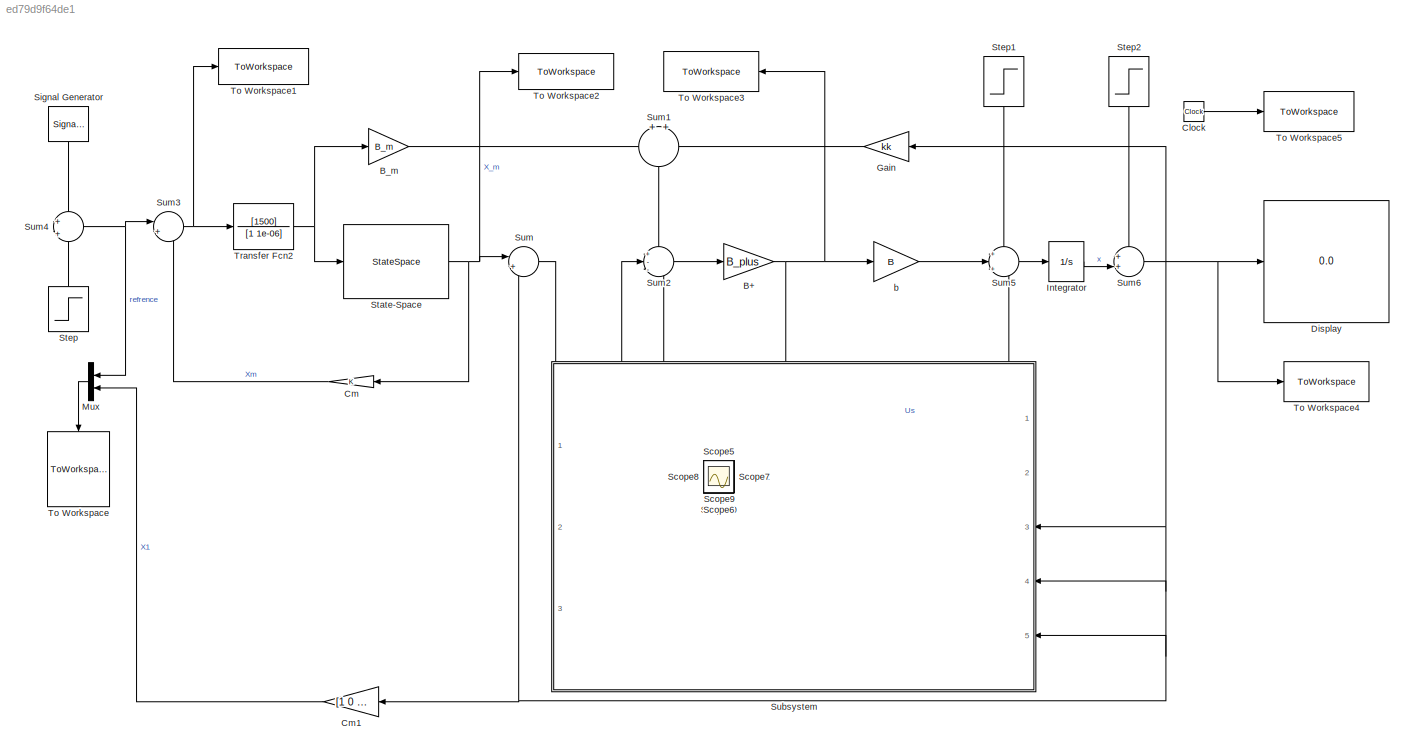
MODEL slx_ed79d9f64de1
KIND model
CONFIG AbsTol = auto
CONFIG EnableMultiTasking = off
CONFIG FixedStep = 0.001
CONFIG MaxStep = auto
CONFIG MinStep = auto
CONFIG RelTol = 1e-3
CONFIG SampleTimeConstraint = Unconstrained
CONFIG SolverName = ode15s
CONFIG StartTime = 0.0
CONFIG StopTime = 10
BLOCK [Gain] B+
  Gain = B_plus
  Multiplication = Matrix(K*u)
BLOCK [Gain] B_m
  Gain = B_m
  Multiplication = Matrix(K*u)
BLOCK [Clock] Clock
  Decimation = 1
BLOCK [Gain] Cm
BLOCK [Gain] Cm1
  Gain = [1  0  0];
BLOCK [Display] Display
  Decimation = 1
  Format = long
  Ports = [1]
BLOCK [Gain] Gain
  Gain = kk
  Multiplication = Matrix(K*u)
  NameLocation = top
BLOCK [Integrator] Integrator
  Ports = [1, 1]
BLOCK [Mux] Mux
  DisplayOption = bar
  Inputs = 2
  NameLocation = top
  Ports = [2, 1]
BLOCK [Scope] Scope
  Floating = off
  IOType = viewer
  NumInputPorts = 1
  Ports = []
  ScopeSpecificationString = Simulink.scopes.TimeScopeBlockCfg('CurrentConfiguration', extmgr.ConfigurationSet(extmgr.Configuration('Core','General UI',true),extmgr.Configuration('Core','Source UI',true),extmgr.Configuration('Sources','WiredSimulink',true,'DataLoggingVariableName','ScopeData5'),extmgr.Configuration('Visuals','Time Domain',true,'SerializedDisplays',{struct('MinYLimReal','-0.25001','MaxYLimReal','2.25','YLabelR...<+1376ch>
BLOCK [Scope] Scope1
  Floating = off
  IOType = viewer
  NumInputPorts = 1
  Ports = []
  ScopeSpecificationString = Simulink.scopes.TimeScopeBlockCfg('CurrentConfiguration', extmgr.ConfigurationSet(extmgr.Configuration('Core','General UI',true),extmgr.Configuration('Core','Source UI',true),extmgr.Configuration('Sources','WiredSimulink',true,'DataLoggingVariableName','ScopeData7'),extmgr.Configuration('Visuals','Time Domain',true,'SerializedDisplays',{struct('MinYLimReal','-7.5','MaxYLimReal','67.5','YLabelReal'...<+1405ch>
BLOCK [Scope] Scope10
  Floating = off
  IOType = viewer
  NumInputPorts = 1
  Ports = []
  ScopeSpecificationString = Simulink.scopes.TimeScopeBlockCfg('CurrentConfiguration', extmgr.ConfigurationSet(extmgr.Configuration('Core','General UI',true),extmgr.Configuration('Core','Source UI',true),extmgr.Configuration('Sources','WiredSimulink',true,'DataLoggingVariableName','ScopeData10'),extmgr.Configuration('Visuals','Time Domain',true,'SerializedDisplays',{struct('MinYLimReal','-0.75008','MaxYLimReal','6.75001','YLa...<+1364ch>
BLOCK [Scope] Scope2
  Floating = off
  IOType = viewer
  NumInputPorts = 1
  Ports = []
  ScopeSpecificationString = Simulink.scopes.TimeScopeBlockCfg('CurrentConfiguration', extmgr.ConfigurationSet(extmgr.Configuration('Core','General UI',true),extmgr.Configuration('Core','Source UI',true),extmgr.Configuration('Sources','WiredSimulink',true,'DataLoggingVariableName','ScopeData6'),extmgr.Configuration('Visuals','Time Domain',true,'SerializedDisplays',{struct('MinYLimReal','-5007447.96445','MaxYLimReal','556383.1...<+1453ch>
BLOCK [Scope] Scope3
  Floating = off
  IOType = viewer
  NumInputPorts = 1
  Ports = []
  ScopeSpecificationString = Simulink.scopes.TimeScopeBlockCfg('CurrentConfiguration', extmgr.ConfigurationSet(extmgr.Configuration('Core','General UI',true),extmgr.Configuration('Core','Source UI',true),extmgr.Configuration('Sources','WiredSimulink',true,'DataLoggingVariableName','ScopeData3'),extmgr.Configuration('Visuals','Time Domain',true,'SerializedDisplays',{struct('MinYLimReal','-5.89265','MaxYLimReal','5.62538','YLab...<+1405ch>
BLOCK [Scope] Scope4
  Floating = off
  IOType = viewer
  NumInputPorts = 1
  Ports = []
  ScopeSpecificationString = Simulink.scopes.TimeScopeBlockCfg('CurrentConfiguration', extmgr.ConfigurationSet(extmgr.Configuration('Core','General UI',true),extmgr.Configuration('Core','Source UI',true),extmgr.Configuration('Sources','WiredSimulink',true,'DataLoggingVariableName','ScopeData4'),extmgr.Configuration('Visuals','Time Domain',true,'SerializedDisplays',{struct('MinYLimReal','-0.75001','MaxYLimReal','6.75008','YLab...<+1362ch>
BLOCK [Scope] Scope5
  Floating = off
  IOType = viewer
  NumInputPorts = 1
  Ports = []
  ScopeSpecificationString = Simulink.scopes.TimeScopeBlockCfg('CurrentConfiguration', extmgr.ConfigurationSet(extmgr.Configuration('Core','General UI',true),extmgr.Configuration('Core','Source UI',true),extmgr.Configuration('Sources','WiredSimulink',true,'DataLoggingVariableName','ScopeData8'),extmgr.Configuration('Visuals','Time Domain',true,'SerializedDisplays',{struct('MinYLimReal','-220066.02076','MaxYLimReal','575970.56...<+1424ch>
BLOCK [Scope] Scope6
  Floating = off
  IOType = viewer
  NumInputPorts = 1
  Ports = []
  ScopeSpecificationString = Simulink.scopes.TimeScopeBlockCfg('CurrentConfiguration', extmgr.ConfigurationSet(extmgr.Configuration('Core','General UI',true),extmgr.Configuration('Core','Source UI',true),extmgr.Configuration('Sources','WiredSimulink',true,'DataLoggingVariableName','ScopeData1'),extmgr.Configuration('Visuals','Time Domain',true,'SerializedDisplays',{struct('MinYLimReal','-4137.35704','MaxYLimReal','10828.54975...<+1387ch>
BLOCK [Scope] Scope7
  Floating = off
  IOType = viewer
  NumInputPorts = 1
  Ports = []
  ScopeSpecificationString = Simulink.scopes.TimeScopeBlockCfg('CurrentConfiguration', extmgr.ConfigurationSet(extmgr.Configuration('Core','General UI',true,'FigureColor',[1 1 1]),extmgr.Configuration('Core','Source UI',true),extmgr.Configuration('Sources','WiredSimulink',true,'DataLoggingVariableName','ScopeData2'),extmgr.Configuration('Visuals','Time Domain',true,'SerializedDisplays',{struct('MinYLimReal','-0.85107','MaxYLi...<+1611ch>
BLOCK [Scope] Scope8
  Floating = off
  IOType = viewer
  NumInputPorts = 1
  Ports = []
  ScopeSpecificationString = Simulink.scopes.TimeScopeBlockCfg('CurrentConfiguration', extmgr.ConfigurationSet(extmgr.Configuration('Core','General UI',true),extmgr.Configuration('Core','Source UI',true),extmgr.Configuration('Sources','WiredSimulink',true),extmgr.Configuration('Visuals','Time Domain',true,'SerializedDisplays',{struct('MinYLimReal','-323.72698','MaxYLimReal','833.55268','YLabelReal','','MinYLimMag',' 0.00000',...<+1391ch>
BLOCK [Scope] Scope9
  Floating = off
  IOType = viewer
  NumInputPorts = 1
  Ports = []
  ScopeSpecificationString = Simulink.scopes.TimeScopeBlockCfg('CurrentConfiguration', extmgr.ConfigurationSet(extmgr.Configuration('Core','General UI',true),extmgr.Configuration('Core','Source UI',true),extmgr.Configuration('Sources','WiredSimulink',true,'DataLoggingVariableName','ScopeData9'),extmgr.Configuration('Visuals','Time Domain',true,'SerializedDisplays',{struct('MinYLimReal','-10.00000','MaxYLimReal','10.00000','YL...<+1365ch>
BLOCK [SignalGenerator] Signal Generator
  Amplitude = 2
  Frequency = 10
  NameLocation = left
  Ports = [0, 1]
BLOCK [StateSpace] State-Space
  A = A_m
  B = B_m
  C = C_m
  D = 0
  InitialCondition = 0
  Ports = [1, 1]
BLOCK [Step] Step
  After = 4
  NameLocation = right
  SampleTime = 0
  Time = 0
BLOCK [Step] Step1
  After = [50 50 50]';
  NameLocation = left
  SampleTime = 0
  Time = 2
BLOCK [Step] Step2
  After = 0.1
  NameLocation = left
  SampleTime = 0
  Time = 4
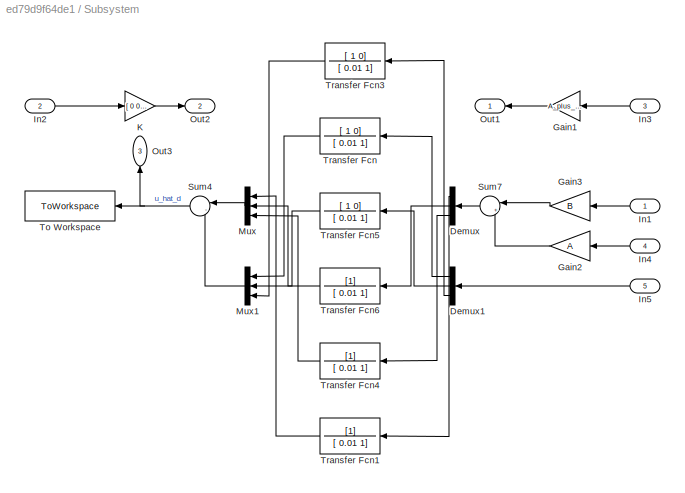
BLOCK [SubSystem] Subsystem
  NameLocation = top
  Ports = [5, 3]
  RequestExecContextInheritance = off
BLOCK [Demux] Subsystem/Demux
  NameLocation = top
  Outputs = 3
  Ports = [1, 3]
BLOCK [Demux] Subsystem/Demux1
  NameLocation = top
  Outputs = 3
  Ports = [1, 3]
BLOCK [Gain] Subsystem/Gain1
  Gain = A_plus_delA
  Multiplication = Matrix(K*u)
  NameLocation = top
BLOCK [Gain] Subsystem/Gain2
  Gain = A
  Multiplication = Matrix(K*u)
  NameLocation = top
BLOCK [Gain] Subsystem/Gain3
  Gain = B
  Multiplication = Matrix(K*u)
  NameLocation = top
BLOCK [Inport] Subsystem/In1
  NameLocation = top
BLOCK [Inport] Subsystem/In2
  Port = 2
BLOCK [Inport] Subsystem/In3
  Port = 3
BLOCK [Inport] Subsystem/In4
  Port = 4
BLOCK [Inport] Subsystem/In5
  Port = 5
BLOCK [Gain] Subsystem/K
  Gain = [ 0   0    0]
BLOCK [Mux] Subsystem/Mux
  DisplayOption = bar
  Inputs = 3
  NameLocation = top
  Ports = [3, 1]
BLOCK [Mux] Subsystem/Mux1
  DisplayOption = bar
  Inputs = 3
  NameLocation = top
  Ports = [3, 1]
BLOCK [Outport] Subsystem/Out1
  NameLocation = top
BLOCK [Outport] Subsystem/Out2
  Port = 2
BLOCK [Outport] Subsystem/Out3
  NameLocation = left
  Port = 3
BLOCK [Sum] Subsystem/Sum4
  Inputs = |-+
  NameLocation = top
  Ports = [2, 1]
BLOCK [Sum] Subsystem/Sum7
  Inputs = |++
  NameLocation = top
  Ports = [2, 1]
BLOCK [ToWorkspace] Subsystem/To Workspace
  FixptAsFi = on
  MaxDataPoints = inf
  NameLocation = top
  Ports = [1]
  SampleTime = -1
  Save2DSignal = 2-D array (concatenate along first dimension)
  VariableName = Ud_hat
BLOCK [TransferFcn] Subsystem/Transfer Fcn
  Denominator = [ 0.01    1]
  NameLocation = top
  Numerator = [  1  0]
BLOCK [TransferFcn] Subsystem/Transfer Fcn1
  Denominator = [ 0.01      1]
  NameLocation = top
BLOCK [TransferFcn] Subsystem/Transfer Fcn3
  Denominator = [ 0.01    1]
  NameLocation = top
  Numerator = [  1  0]
BLOCK [TransferFcn] Subsystem/Transfer Fcn4
  Denominator = [ 0.01      1]
  NameLocation = top
BLOCK [TransferFcn] Subsystem/Transfer Fcn5
  Denominator = [ 0.01    1]
  NameLocation = top
  Numerator = [  1  0]
BLOCK [TransferFcn] Subsystem/Transfer Fcn6
  Denominator = [ 0.01      1]
  NameLocation = top
BLOCK [Sum] Sum
  Inputs = |+-
  Ports = [2, 1]
BLOCK [Sum] Sum1
  NameLocation = right
  Ports = [2, 1]
BLOCK [Sum] Sum2
  Inputs = +--
  Ports = [3, 1]
BLOCK [Sum] Sum3
  Inputs = |+-
  Ports = [2, 1]
BLOCK [Sum] Sum4
  Inputs = +|+
  Ports = [2, 1]
BLOCK [Sum] Sum5
  Inputs = +|+|+
  Ports = [3, 1]
BLOCK [Sum] Sum6
  Inputs = ++|
  Ports = [2, 1]
BLOCK [ToWorkspace] To Workspace
  FixptAsFi = on
  MaxDataPoints = inf
  NameLocation = left
  Ports = [1]
  SampleTime = -1
  SaveFormat = Structure With Time
  VariableName = input
BLOCK [ToWorkspace] To Workspace1
  FixptAsFi = on
  MaxDataPoints = inf
  Ports = [1]
  SampleTime = -1
  SaveFormat = Structure With Time
  VariableName = error
BLOCK [ToWorkspace] To Workspace2
  FixptAsFi = on
  MaxDataPoints = inf
  Ports = [1]
  SampleTime = -1
  SaveFormat = Structure With Time
  VariableName = X_model
BLOCK [ToWorkspace] To Workspace3
  FixptAsFi = on
  MaxDataPoints = inf
  NameLocation = top
  Ports = [1]
  SampleTime = -1
  SaveFormat = Structure With Time
  VariableName = actual_control
BLOCK [ToWorkspace] To Workspace4
  FixptAsFi = on
  MaxDataPoints = inf
  Ports = [1]
  SampleTime = -1
  SaveFormat = Structure With Time
  VariableName = X_actual
BLOCK [ToWorkspace] To Workspace5
  FixptAsFi = on
  MaxDataPoints = inf
  Ports = [1]
  SampleTime = -1
  VariableName = t
BLOCK [TransferFcn] Transfer Fcn2
  Denominator = [1 1e-06]
  Numerator = [1500]
BLOCK [Gain] b
  Gain = B
  Multiplication = Matrix(K*u)
NET B+:1 -> Subsystem:1, To Workspace3:1, b:1
LINE B_m:1 -> Sum1:1
LINE Clock:1 -> To Workspace5:1
LINE Cm1:1 -> Mux:2
LINE Cm:1 -> Sum3:2
LINE Gain:1 -> Sum1:2
LINE Integrator:1 -> Sum6:2
LINE Mux:1 -> To Workspace:1
LINE Signal Generator:1 -> Sum4:1
NET State-Space:1 -> Cm:1, Sum:1, To Workspace2:1
LINE Step1:1 -> Sum5:1
LINE Step2:1 -> Sum6:1
LINE Step:1 -> Sum4:2
LINE Subsystem/Demux1:1 -> Subsystem/Transfer Fcn:1
LINE Subsystem/Demux1:2 -> Subsystem/Transfer Fcn5:1
LINE Subsystem/Demux1:3 -> Subsystem/Transfer Fcn3:1
LINE Subsystem/Demux:1 -> Subsystem/Transfer Fcn1:1
LINE Subsystem/Demux:2 -> Subsystem/Transfer Fcn6:1
LINE Subsystem/Demux:3 -> Subsystem/Transfer Fcn4:1
LINE Subsystem/Gain1:1 -> Subsystem/Out1:1
LINE Subsystem/Gain2:1 -> Subsystem/Sum7:2
LINE Subsystem/Gain3:1 -> Subsystem/Sum7:1
LINE Subsystem/In1:1 -> Subsystem/Gain3:1
LINE Subsystem/In2:1 -> Subsystem/K:1
LINE Subsystem/In3:1 -> Subsystem/Gain1:1
LINE Subsystem/In4:1 -> Subsystem/Gain2:1
LINE Subsystem/In5:1 -> Subsystem/Demux1:1
LINE Subsystem/K:1 -> Subsystem/Out2:1
LINE Subsystem/Mux1:1 -> Subsystem/Sum4:2
LINE Subsystem/Mux:1 -> Subsystem/Sum4:1
NET Subsystem/Sum4:1 -> Subsystem/Out3:1, Subsystem/To Workspace:1
LINE Subsystem/Sum7:1 -> Subsystem/Demux:1
LINE Subsystem/Transfer Fcn1:1 -> Subsystem/Mux:1
LINE Subsystem/Transfer Fcn3:1 -> Subsystem/Mux1:3
LINE Subsystem/Transfer Fcn4:1 -> Subsystem/Mux:3
LINE Subsystem/Transfer Fcn5:1 -> Subsystem/Mux1:2
LINE Subsystem/Transfer Fcn6:1 -> Subsystem/Mux:2
LINE Subsystem/Transfer Fcn:1 -> Subsystem/Mux1:1
LINE Subsystem:1 -> Sum5:3
LINE Subsystem:2 -> Sum2:2
LINE Subsystem:3 -> Sum2:3
LINE Sum1:1 -> Sum2:1
LINE Sum2:1 -> B+:1
NET Sum3:1 -> To Workspace1:1, Transfer Fcn2:1
NET Sum4:1 -> Mux:1, Sum3:1
LINE Sum5:1 -> Integrator:1
NET Sum6:1 -> Cm1:1, Display:1, Gain:1, Subsystem:3, Subsystem:4, Subsystem:5, Sum:2, To Workspace4:1
LINE Sum:1 -> Subsystem:2
NET Transfer Fcn2:1 -> B_m:1, State-Space:1
LINE b:1 -> Sum5:2
note: NET lines group one-source signal fan-out (src -> all destinations, sorted); 1:1 wires keep LINE
